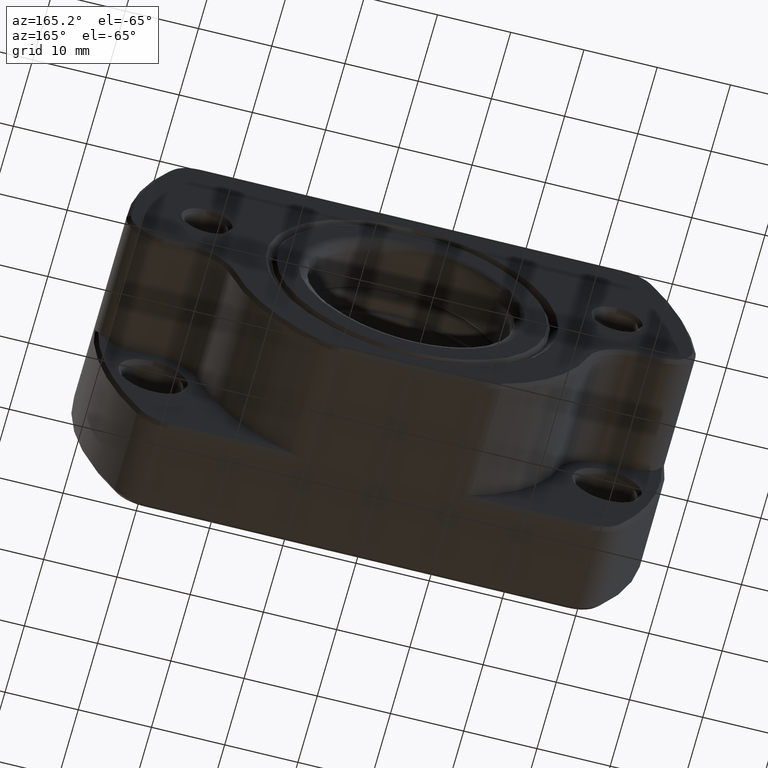
[diagram: clean part render]
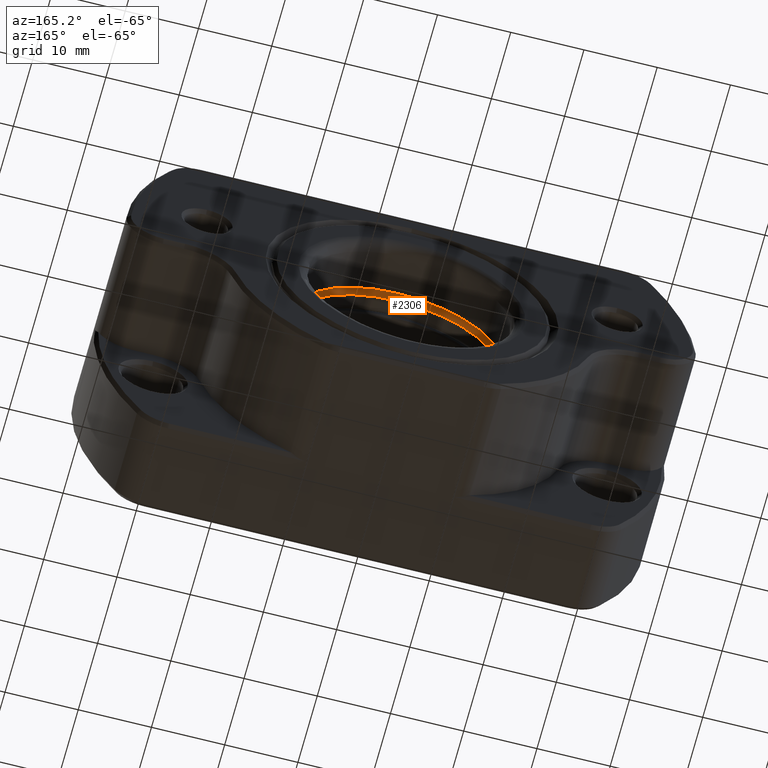
[diagram: same view with one face highlighted and labeled with its STEP entity id]
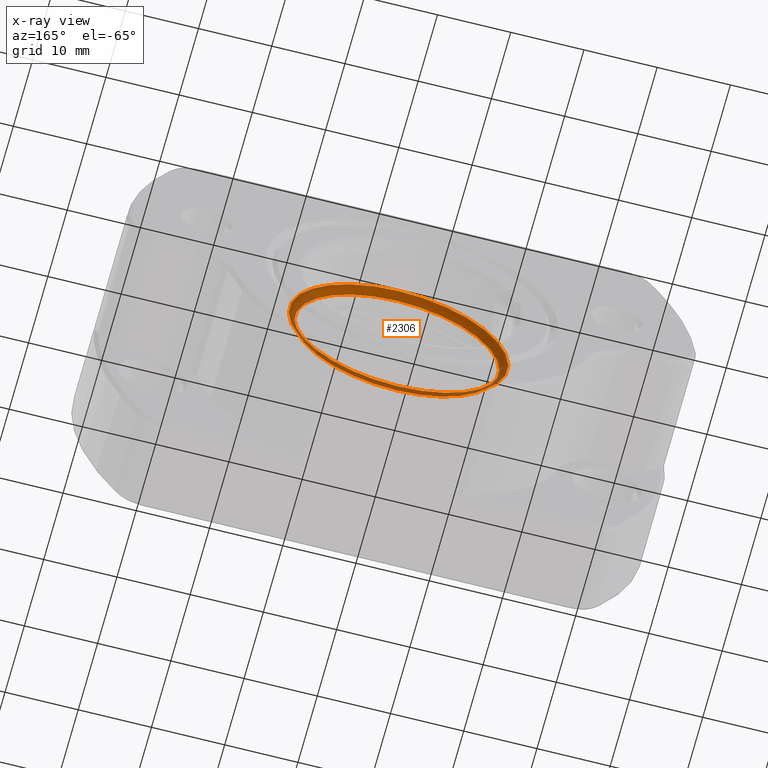
[diagram: x-ray of the same camera — body ghosted, the highlighted face saturated]
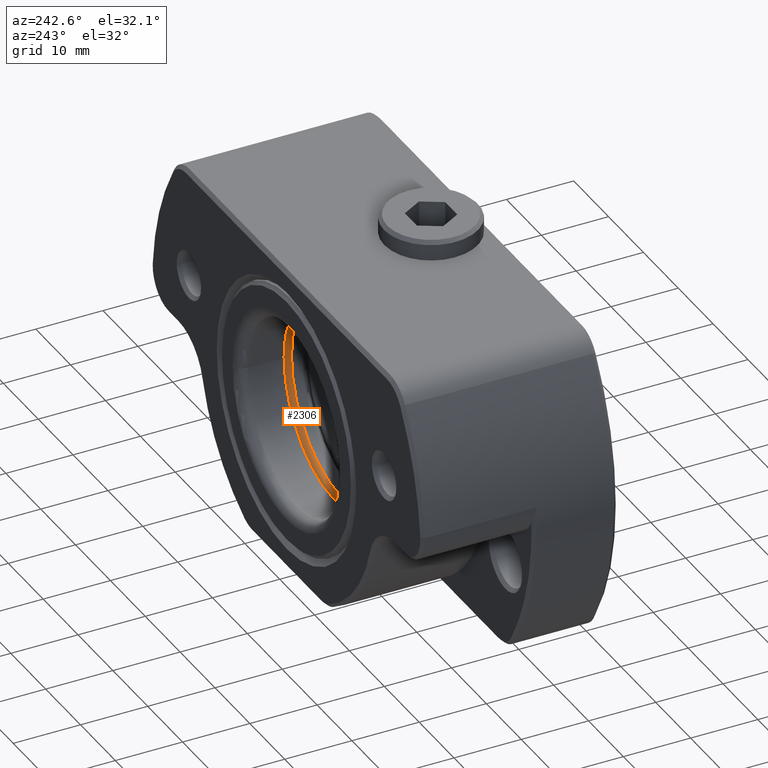
[diagram: same view with one face highlighted and labeled with its STEP entity id]
A machine part, auxiliary view. The second image highlights one B-rep face of the part: STEP entity #2306.
The next image is the same camera in x-ray: the body ghosted, the highlighted face saturated — about 35% of this face is hidden behind the body in this view.
A second angle (auxiliary view) of the same face is appended — the face is thin or edge-on in the first view.
In plain terms, the highlighted toroidal blend (fillet) surface has major radius 15 mm and minor (blend) radius 1 mm.
Its self-contained STEP definition (entity closure, byte-faithful):
#35=TOROIDAL_SURFACE('',#2702,15.,1.);
#268=FACE_OUTER_BOUND('',#416,.T.);
#416=EDGE_LOOP('',(#2033,#2034,#2035,#2036,#2037,#2038));
#601=CIRCLE('',#2677,14.);
#602=CIRCLE('',#2678,14.);
#618=CIRCLE('',#2700,15.);
#619=CIRCLE('',#2701,15.);
#620=CIRCLE('',#2703,1.);
#1085=VERTEX_POINT('',#4141);
#1086=VERTEX_POINT('',#4143);
#1098=VERTEX_POINT('',#4179);
#1099=VERTEX_POINT('',#4180);
#1401=EDGE_CURVE('',#1085,#1086,#601,.T.);
#1402=EDGE_CURVE('',#1086,#1085,#602,.T.);
#1419=EDGE_CURVE('',#1098,#1099,#618,.T.);
#1420=EDGE_CURVE('',#1099,#1098,#619,.T.);
#1421=EDGE_CURVE('',#1086,#1099,#620,.T.);
#2033=ORIENTED_EDGE('',*,*,#1401,.F.);
#2034=ORIENTED_EDGE('',*,*,#1402,.F.);
#2035=ORIENTED_EDGE('',*,*,#1421,.T.);
#2036=ORIENTED_EDGE('',*,*,#1420,.T.);
#2037=ORIENTED_EDGE('',*,*,#1419,.T.);
#2038=ORIENTED_EDGE('',*,*,#1421,.F.);
#2306=ADVANCED_FACE('',(#268),#35,.T.);
#2677=AXIS2_PLACEMENT_3D('',#4144,#3380,#3381);
#2678=AXIS2_PLACEMENT_3D('',#4145,#3382,#3383);
#2700=AXIS2_PLACEMENT_3D('',#4181,#3427,#3428);
#2701=AXIS2_PLACEMENT_3D('',#4182,#3429,#3430);
#2702=AXIS2_PLACEMENT_3D('',#4183,#3431,#3432);
#2703=AXIS2_PLACEMENT_3D('',#4184,#3433,#3434);
#3380=DIRECTION('center_axis',(0.,0.,1.));
#3381=DIRECTION('ref_axis',(0.,1.,0.));
#3382=DIRECTION('center_axis',(0.,0.,1.));
#3383=DIRECTION('ref_axis',(0.,1.,0.));
#3427=DIRECTION('center_axis',(0.,0.,1.));
#3428=DIRECTION('ref_axis',(0.,-1.,0.));
#3429=DIRECTION('center_axis',(0.,0.,1.));
#3430=DIRECTION('ref_axis',(0.,-1.,0.));
#3431=DIRECTION('center_axis',(0.,0.,1.));
#3432=DIRECTION('ref_axis',(-0.0052913025112779,-0.999986000960881,0.));
#3433=DIRECTION('center_axis',(-0.999986000960881,0.00529130251127777,0.));
#3434=DIRECTION('ref_axis',(0.00529130251127777,0.999986000960881,0.));
#4141=CARTESIAN_POINT('',(0.,-14.,-1.));
#4143=CARTESIAN_POINT('',(0.0740782351578889,13.9998040134523,-1.));
#4144=CARTESIAN_POINT('Origin',(0.,0.,-1.));
#4145=CARTESIAN_POINT('Origin',(0.,0.,-1.));
#4179=CARTESIAN_POINT('',(0.,15.,0.));
#4180=CARTESIAN_POINT('',(0.0793695376691666,14.9997900144132,0.));
#4181=CARTESIAN_POINT('Origin',(0.,0.,0.));
#4182=CARTESIAN_POINT('Origin',(0.,0.,0.));
#4183=CARTESIAN_POINT('Origin',(0.,0.,-1.));
#4184=CARTESIAN_POINT('Origin',(0.0793695376691666,14.9997900144132,-1.));